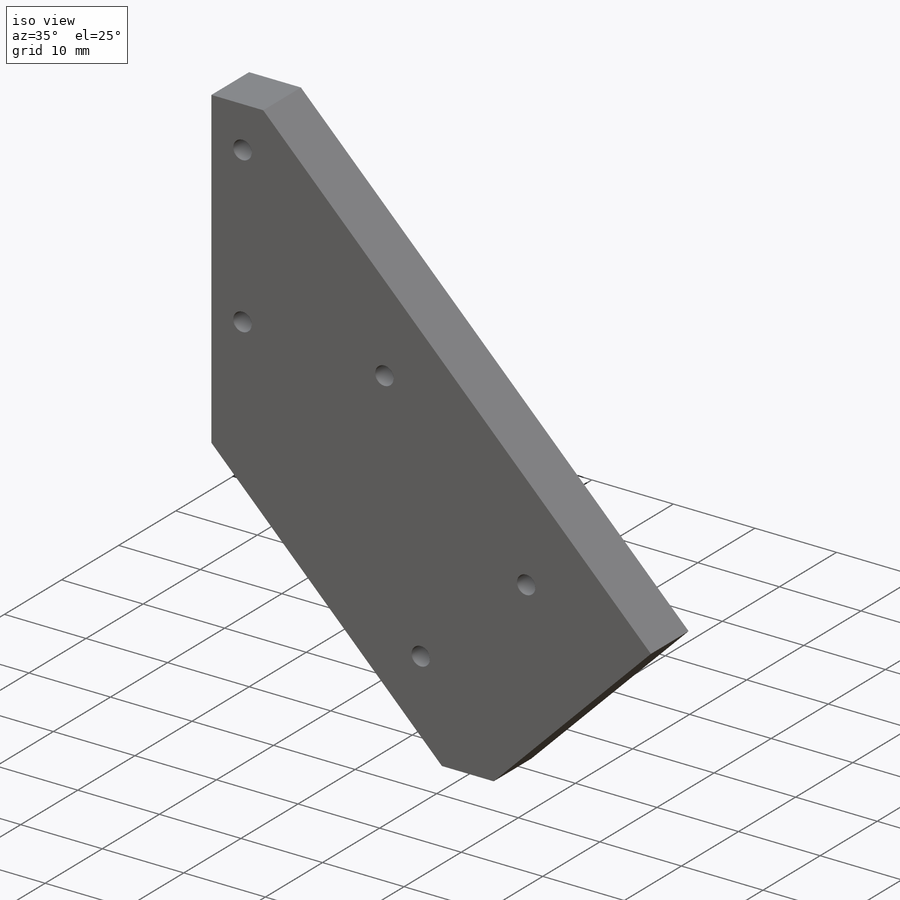
[diagram: iso view]
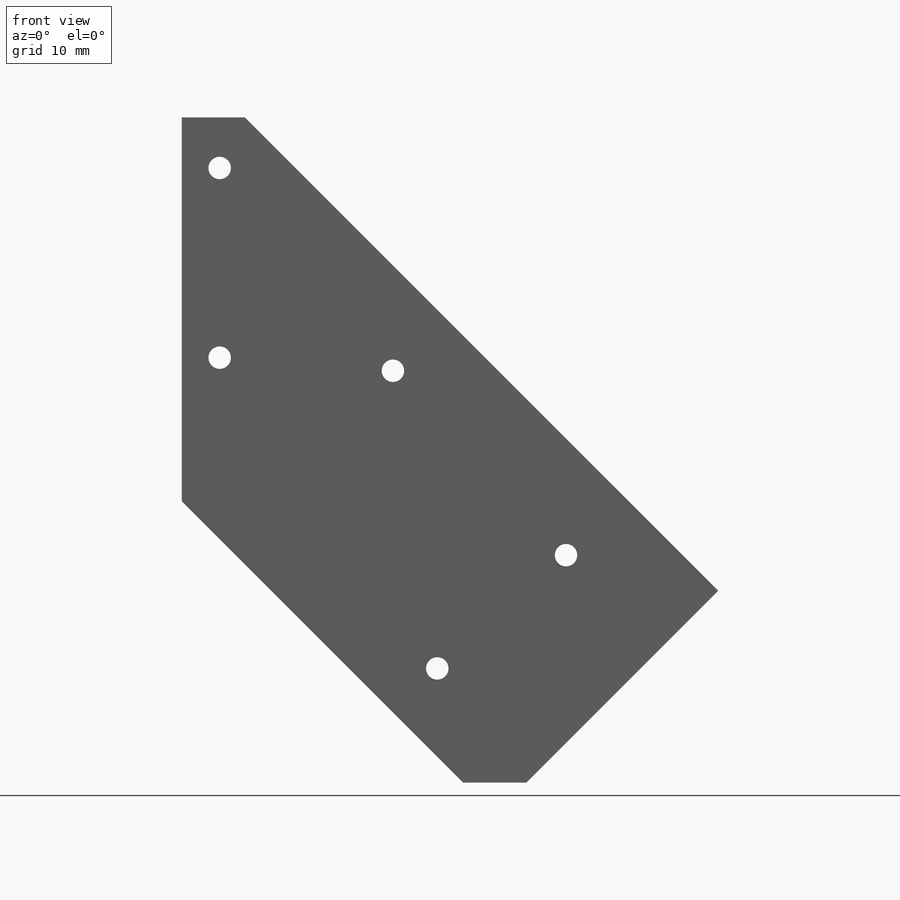
[diagram: front view]
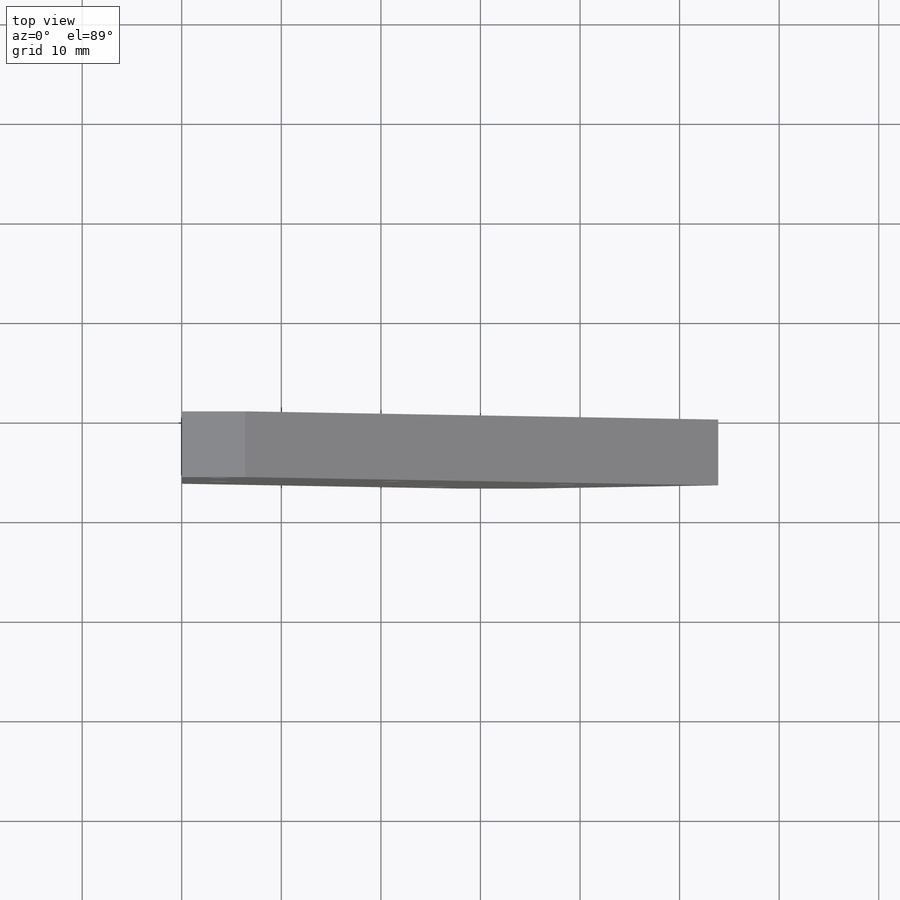
[diagram: top view]
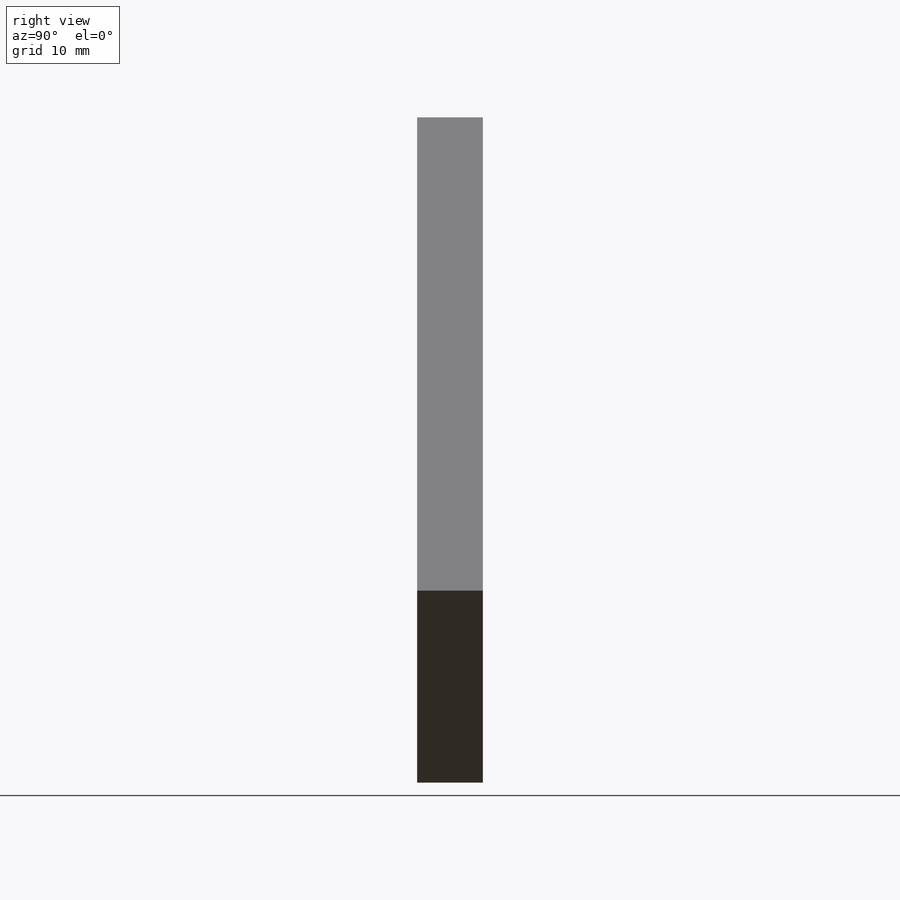
[diagram: right view]
SOLIDWORKS PART (.sldprt)
format: sldprt  version: not decoded by parser v0  size: 348,160 bytes
history: native  units: mm
features: sketch x4, material x1, extrude x1, hole x1, cut_extrude x1 (+12 scaffold rows collapsed)
feature tree (20):
  scaffold x12  (default folders/planes/origin — collapsed)
  material  "Acrylic (BLUE)"
  sketch  "Sketch1"  dims[c1.D1=12.7mm c1.D2=31.75mm c1.D3=76.2mm c1.D4=63.5mm c2.D4=135.0deg c2.D5=38.1mm c2.D1=76.2mm c3.D1=45.0deg c3.D4=6.35mm c3.D5=6.35mm]
  extrude  "Boss-Extrude1"  Depth=6.604mm
  hole  "#4-40 Tapped Hole1"  Diameter=2.2606mm Depth=7.5946mm
  sketch  "Sketch3"  dims[c1.D1=25.4mm c1.D2=2.54mm c1.D3=38.1mm c1.D4=19.05mm c1.D5=17.4498mm c1.D6=6.35mm c1.D7=5.08mm c1.D8=17.2212mm c1.D9=19.05mm c2.D9=145.0deg c2.D2=3.81mm c2.D5=17.4498mm c2.D6=52.1716mm]
  sketch  "Sketch4"  dims[hole-wizard template sketch: 50 standard entries collapsed; hole parameters above]
  sketch  "Sketch5"
  cut_extrude  "Cut-Extrude1"  Depth=0.127mm
decode coverage: 6 of 7 modeling features carry decoded parameters
note: ~ marks probable driven/reference dimensions
note: suppression state not decoded; provenance and decode notes live in map.json
